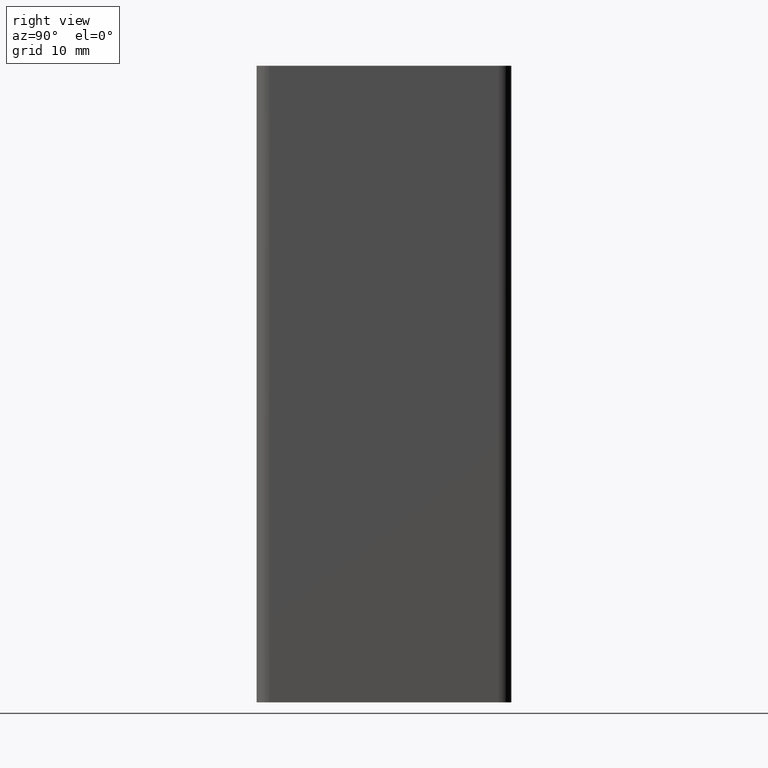
[diagram: clean part render]
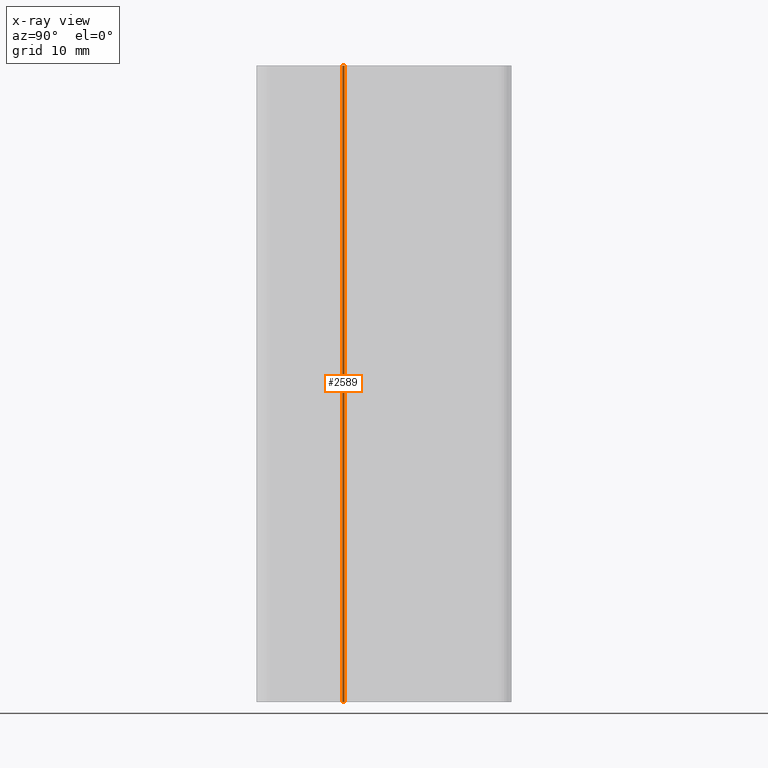
[diagram: x-ray — body ghosted, one internal face saturated and labeled with its STEP entity id]
A machine part, right view, then the same camera in x-ray: the body is ghosted and one INTERNAL B-rep face — a face not visible from any outside direction — is saturated and labeled: STEP entity #2589.
In plain terms, the highlighted cylindrical surface (edge-blend (fillet) strip) has radius 0.5 mm, axis along (0, 0, 1).
Its self-contained STEP definition (entity closure, byte-faithful):
#133=CIRCLE('',#2833,0.500000000000004);
#134=CIRCLE('',#2834,0.500000000000004);
#210=CYLINDRICAL_SURFACE('',#2832,0.500000000000004);
#325=FACE_OUTER_BOUND('',#456,.T.);
#456=EDGE_LOOP('',(#2062,#2063,#2064,#2065));
#693=LINE('',#4293,#948);
#695=LINE('',#4299,#950);
#948=VECTOR('',#3513,100.);
#950=VECTOR('',#3519,100.);
#1211=VERTEX_POINT('',#4290);
#1212=VERTEX_POINT('',#4292);
#1213=VERTEX_POINT('',#4296);
#1214=VERTEX_POINT('',#4298);
#1571=EDGE_CURVE('',#1212,#1211,#693,.T.);
#1573=EDGE_CURVE('',#1213,#1211,#133,.T.);
#1574=EDGE_CURVE('',#1214,#1213,#695,.T.);
#1575=EDGE_CURVE('',#1212,#1214,#134,.T.);
#2062=ORIENTED_EDGE('',*,*,#1573,.F.);
#2063=ORIENTED_EDGE('',*,*,#1574,.F.);
#2064=ORIENTED_EDGE('',*,*,#1575,.F.);
#2065=ORIENTED_EDGE('',*,*,#1571,.T.);
#2589=ADVANCED_FACE('',(#325),#210,.F.);
#2832=AXIS2_PLACEMENT_3D('',#4295,#3515,#3516);
#2833=AXIS2_PLACEMENT_3D('',#4297,#3517,#3518);
#2834=AXIS2_PLACEMENT_3D('',#4300,#3520,#3521);
#3513=DIRECTION('',(0.,0.,1.));
#3515=DIRECTION('center_axis',(0.,0.,1.));
#3516=DIRECTION('ref_axis',(1.,1.55431223447521E-14,0.));
#3517=DIRECTION('center_axis',(0.,0.,-1.));
#3518=DIRECTION('ref_axis',(1.,1.55431223447521E-14,0.));
#3519=DIRECTION('',(0.,0.,1.));
#3520=DIRECTION('center_axis',(0.,0.,1.));
#3521=DIRECTION('ref_axis',(1.,1.55431223447521E-14,0.));
#4290=CARTESIAN_POINT('',(7.50000699999999,-6.16151636891501,100.));
#4292=CARTESIAN_POINT('',(7.50000699999999,-6.16151636891501,0.));
#4293=CARTESIAN_POINT('',(7.50000699999999,-6.16151636891501,0.));
#4295=CARTESIAN_POINT('Origin',(8.00000699999999,-6.161516368915,0.));
#4296=CARTESIAN_POINT('',(7.64645360940672,-6.51506975950828,100.));
#4297=CARTESIAN_POINT('Origin',(8.00000699999999,-6.161516368915,100.));
#4298=CARTESIAN_POINT('',(7.64645360940672,-6.51506975950828,0.));
#4299=CARTESIAN_POINT('',(7.64645360940672,-6.51506975950828,0.));
#4300=CARTESIAN_POINT('Origin',(8.00000699999999,-6.161516368915,0.));